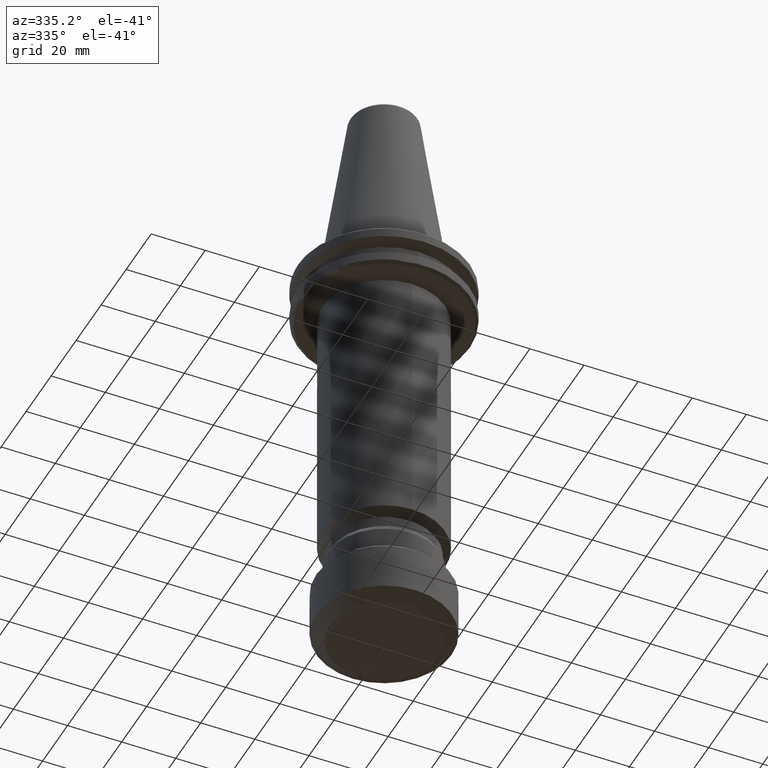
[diagram: clean part render]
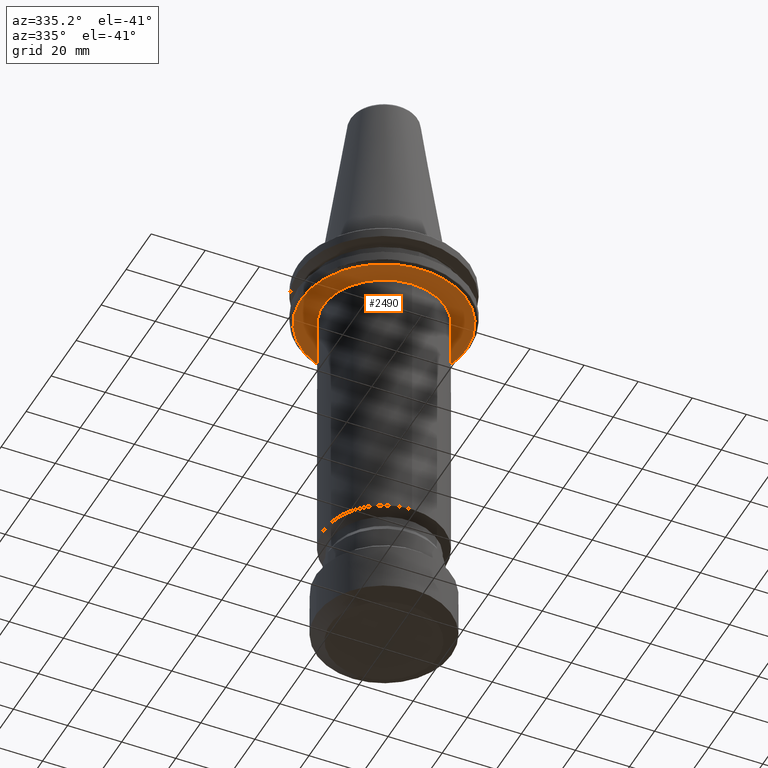
[diagram: same view with one face highlighted and labeled with its STEP entity id]
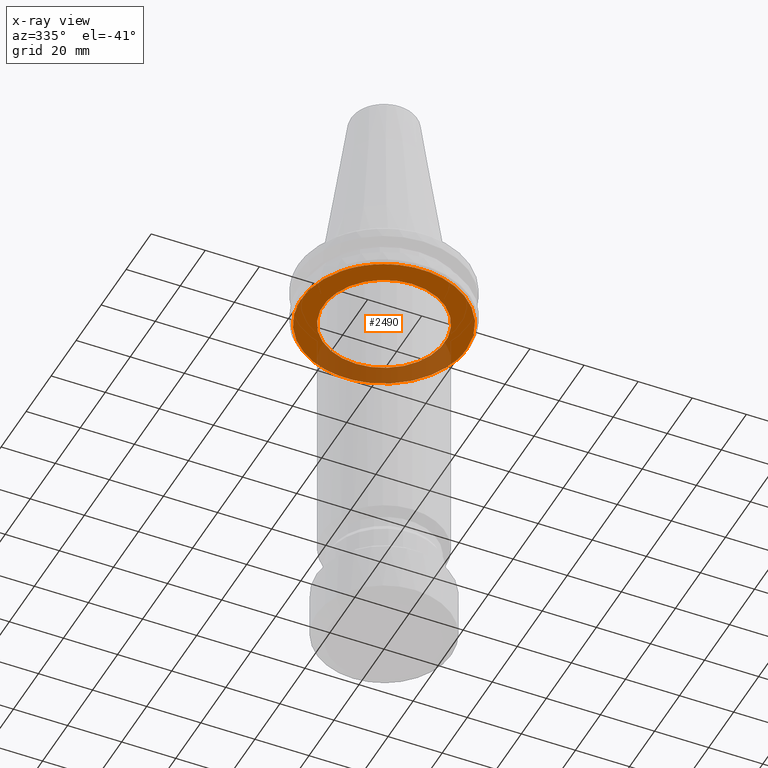
[diagram: x-ray of the same camera — body ghosted, the highlighted face saturated]
A machine part, auxiliary view. The second image highlights one B-rep face of the part: STEP entity #2490.
The next image is the same camera in x-ray: the body ghosted, the highlighted face saturated — about 31% of this face is hidden behind the body in this view.
In plain terms, the highlighted planar face has unit normal (0, 0, -1).
Its self-contained STEP definition (entity closure, byte-faithful):
#61 = CARTESIAN_POINT ( 'NONE',  ( 13.28172584842532800, 27.56232614133101700, -19.10000000000000500 ) ) ;
#64 = CIRCLE ( 'NONE', #1631, 22.50000000000000000 ) ;
#129 = CARTESIAN_POINT ( 'NONE',  ( 30.26873124096505000, -4.384212348259254100, -19.09999999999999800 ) ) ;
#139 = CARTESIAN_POINT ( 'NONE',  ( 28.35281599932573800, -11.52332575197702400, -19.09999999999999400 ) ) ;
#149 = CARTESIAN_POINT ( 'NONE',  ( 21.01432386828793100, -22.22183415146994200, -19.09999999999999800 ) ) ;
#155 = CARTESIAN_POINT ( 'NONE',  ( 21.48737639141571200, 21.78158596738516200, -19.09999999999999800 ) ) ;
#159 = CARTESIAN_POINT ( 'NONE',  ( 13.18437705999907200, -27.59798144895923900, -19.10000000000000100 ) ) ;
#171 = CARTESIAN_POINT ( 'NONE',  ( 28.57107281590015500, 10.92771550554038900, -19.09999999999999800 ) ) ;
#180 = CARTESIAN_POINT ( 'NONE',  ( 30.20915561335850100, 4.775935387584215900, -19.09999999999999800 ) ) ;
#199 = CARTESIAN_POINT ( 'NONE',  ( -27.75370311470020500, -12.85038843701005500, -19.10000000000000500 ) ) ;
#212 = CARTESIAN_POINT ( 'NONE',  ( -30.29755081166547400, -4.264357254439418400, -19.09999999999999800 ) ) ;
#222 = CARTESIAN_POINT ( 'NONE',  ( -30.48169865222845200, 2.591888391102950900, -19.10000000000000100 ) ) ;
#234 = CARTESIAN_POINT ( 'NONE',  ( -27.48304567116195000, 13.42051715856375600, -19.09999999999999800 ) ) ;
#240 = VERTEX_POINT ( 'NONE', #1393 ) ;
#245 = CARTESIAN_POINT ( 'NONE',  ( -23.09037719587471200, 20.05595545900811400, -19.10000000000000100 ) ) ;
#259 = CARTESIAN_POINT ( 'NONE',  ( 30.95132634999999900, -29.85996502400000800, -19.10000000000000100 ) ) ;
#261 = CARTESIAN_POINT ( 'NONE',  ( -15.19550766328621300, 26.54561864518078100, -19.10000000000000100 ) ) ;
#286 = CARTESIAN_POINT ( 'NONE',  ( 30.58431456788775900, 0.0000000000000000000, -19.10000000001087600 ) ) ;
#312 = B_SPLINE_CURVE_WITH_KNOTS ( 'NONE', 3,
 ( #2133, #2630, #849, #2643, #1119, #2899, #1378, #3157, #1617, #61, #1885, #323, #2142, #596, #2405, #857, #737, #947, #2731, #1212, #2981, #1465, #3244, #1713, #155, #1970, #421, #2237, #682, #2492, #961, #2743, #1226, #2990, #1475, #3255, #1720, #171, #1980, #434, #2249, #693, #2500, #974, #2758, #1236, #3001, #1488, #3265, #1733, #180, #1996, #445, #2257 ),
 .UNSPECIFIED., .F., .F.,
 ( 4, 1, 1, 1, 1, 2, 2, 1, 1, 1, 1, 2, 2, 1, 1, 1, 2, 2, 2, 2, 1, 1, 1, 2, 2, 1, 1, 1, 1, 2, 2, 1, 1, 1, 1, 2, 2, 4 ),
 ( 0.0000000000000000000, 0.06249999999999754400, 0.09374999999999642000, 0.1093749999999959200, 0.1171874999999957300, 0.1210937499999956300, 0.1249999999999955300, 0.1874999999999963900, 0.2187499999999967800, 0.2343749999999970900, 0.2421874999999972000, 0.2460937499999972000, 0.2499999999999971700, 0.3124999999999981100, 0.3437499999999985600, 0.3593749999999986700, 0.3671874999999987200, 0.3749999999999987800, 0.4374999999999998900, 0.5000000000000010000, 0.5625000000000021100, 0.5937500000000026600, 0.6093750000000028900, 0.6171875000000031100, 0.6250000000000032200, 0.6875000000000041100, 0.7187500000000046600, 0.7343750000000048800, 0.7421875000000048800, 0.7460937500000048800, 0.7500000000000047700, 0.8125000000000028900, 0.8437500000000020000, 0.8593750000000016700, 0.8671875000000014400, 0.8710937500000014400, 0.8750000000000013300, 1.000000000000000000 ),
 .UNSPECIFIED. ) ;
#322 = VERTEX_POINT ( 'NONE', #2460 ) ;
#323 = CARTESIAN_POINT ( 'NONE',  ( 15.64013759979425400, 26.28860460622494000, -19.10000000000000500 ) ) ;
#340 = VERTEX_POINT ( 'NONE', #1674 ) ;
#353 = VERTEX_POINT ( 'NONE', #3238 ) ;
#390 = CARTESIAN_POINT ( 'NONE',  ( 30.23200490017943300, -4.629091109961038300, -19.10000000000000100 ) ) ;
#401 = CARTESIAN_POINT ( 'NONE',  ( 27.42396496027800300, -13.54277267767017900, -19.09999999999999400 ) ) ;
#415 = CARTESIAN_POINT ( 'NONE',  ( 20.23534935739022300, -22.94897283225735100, -19.10000000000000500 ) ) ;
#421 = CARTESIAN_POINT ( 'NONE',  ( 23.24435557958637200, 19.89596076676553000, -19.10000000000000100 ) ) ;
#425 = CARTESIAN_POINT ( 'NONE',  ( 12.71563949976270500, -27.81573909515663000, -19.10000000000000100 ) ) ;
#434 = CARTESIAN_POINT ( 'NONE',  ( 28.94501575705652000, 9.879581787443381600, -19.09999999999999800 ) ) ;
#445 = CARTESIAN_POINT ( 'NONE',  ( 30.58431457494656400, 1.585561558465863100, -19.10000000000000500 ) ) ;
#462 = CARTESIAN_POINT ( 'NONE',  ( -27.77496745460359800, -12.80436677761333500, -19.10000000000000500 ) ) ;
#472 = CARTESIAN_POINT ( 'NONE',  ( -30.47532841034560000, -2.588423043327838300, -19.09999999999999400 ) ) ;
#473 = B_SPLINE_CURVE_WITH_KNOTS ( 'NONE', 3,
 ( #648, #1182, #1437, #3216, #1682, #129, #1940, #390, #2209, #659, #2469, #928, #2718, #1191, #2966, #1450, #3226, #1695, #139, #1953, #401, #2218, #667, #2477, #938, #2724, #1203, #2973, #1457, #3237, #1705, #149, #1960, #415, #2228, #675, #2486, #952, #2735, #1215, #2983, #1468, #3246, #1715, #159, #1973, #425, #2241, #688, #2496, #966, #2746 ),
 .UNSPECIFIED., .F., .F.,
 ( 4, 1, 1, 1, 1, 2, 2, 1, 1, 1, 1, 2, 2, 1, 1, 1, 2, 2, 2, 1, 1, 1, 2, 2, 1, 1, 1, 1, 2, 2, 1, 1, 1, 1, 2, 2, 4 ),
 ( 0.0000000000000000000, 0.06250000000000229000, 0.09375000000000344200, 0.1093750000000039700, 0.1171875000000042300, 0.1210937500000043400, 0.1250000000000044400, 0.1875000000000054400, 0.2187500000000060000, 0.2343750000000062200, 0.2421875000000064100, 0.2460937500000065500, 0.2500000000000066600, 0.3125000000000077700, 0.3437500000000082200, 0.3593750000000084900, 0.3671875000000086600, 0.3750000000000088300, 0.5000000000000102100, 0.5625000000000109900, 0.5937500000000113200, 0.6093750000000115500, 0.6171875000000118800, 0.6250000000000121000, 0.6875000000000141000, 0.7187500000000151000, 0.7343750000000155400, 0.7421875000000158800, 0.7460937500000157700, 0.7500000000000156500, 0.8125000000000108800, 0.8437500000000084400, 0.8593750000000073300, 0.8671875000000066600, 0.8710937500000063300, 0.8750000000000061100, 1.000000000000000000 ),
 .UNSPECIFIED. ) ;
#474 = ORIENTED_EDGE ( 'NONE', *, *, #3339, .T. ) ;
#484 = CARTESIAN_POINT ( 'NONE',  ( -30.21610992257177100, 4.752455162739732200, -19.09999999999999400 ) ) ;
#495 = CARTESIAN_POINT ( 'NONE',  ( -26.63542198192667200, 15.05810840569450400, -19.10000000000000500 ) ) ;
#509 = CARTESIAN_POINT ( 'NONE',  ( -22.55740055453012300, 20.66346871567960300, -19.10000000000000100 ) ) ;
#516 = CARTESIAN_POINT ( 'NONE',  ( -14.49237871431504100, 26.93291338553352100, -19.10000000000000100 ) ) ;
#537 = DIRECTION ( 'NONE',  ( -0.0000000000000000000, -0.0000000000000000000, 1.000000000000000000 ) ) ;
#596 = CARTESIAN_POINT ( 'NONE',  ( 16.55969022057854900, 25.71372602992227700, -19.09999999999999800 ) ) ;
#603 = EDGE_CURVE ( 'NONE', #3187, #240, #747, .T. ) ;
#648 = CARTESIAN_POINT ( 'NONE',  ( 30.58431456788775900, 0.0000000000000000000, -19.10000000001087600 ) ) ;
#659 = CARTESIAN_POINT ( 'NONE',  ( 30.08930055577180700, -5.542279228410290400, -19.09999999999999800 ) ) ;
#667 = CARTESIAN_POINT ( 'NONE',  ( 27.18400248754319300, -14.01575484965463600, -19.10000000000000900 ) ) ;
#675 = CARTESIAN_POINT ( 'NONE',  ( 18.08551196356361500, -24.67055671657410800, -19.10000000000000500 ) ) ;
#676 = CARTESIAN_POINT ( 'NONE',  ( -15.28022559924218600, -26.56610184050663600, -19.09999999999999400 ) ) ;
#682 = CARTESIAN_POINT ( 'NONE',  ( 24.83982521768166800, 17.86412968044215400, -19.10000000000000500 ) ) ;
#688 = CARTESIAN_POINT ( 'NONE',  ( 12.57248720032345600, -27.88073218351921100, -19.10000000000000900 ) ) ;
#690 = CARTESIAN_POINT ( 'NONE',  ( -11.76550963851126500, -28.29854431332749000, -19.10000000000000100 ) ) ;
#693 = CARTESIAN_POINT ( 'NONE',  ( 29.02936800451147500, 9.628018884013522800, -19.10000000000000100 ) ) ;
#700 = CARTESIAN_POINT ( 'NONE',  ( -9.940384830415038000, -28.99014659269100500, -19.10000000000000100 ) ) ;
#715 = CARTESIAN_POINT ( 'NONE',  ( -28.95821289966647100, -9.973655029903424600, -19.09999999999999800 ) ) ;
#732 = CARTESIAN_POINT ( 'NONE',  ( -30.50606709491026400, -2.187785188222900700, -19.09999999999999800 ) ) ;
#737 = CARTESIAN_POINT ( 'NONE',  ( 16.81838678927215400, 25.54495793860870400, -19.10000000000000500 ) ) ;
#746 = CARTESIAN_POINT ( 'NONE',  ( -30.07175467493614500, 5.578330283078129200, -19.10000000000000900 ) ) ;
#747 = B_SPLINE_CURVE_WITH_KNOTS ( 'NONE', 3,
 ( #2510, #700, #690, #676, #2037, #2023 ),
 .UNSPECIFIED., .F., .F.,
 ( 4, 2, 4 ),
 ( 0.0000000000000000000, 0.5000000000000000000, 1.000000000000000000 ),
 .UNSPECIFIED. ) ;
#756 = CARTESIAN_POINT ( 'NONE',  ( -25.71533521490157900, 16.55811839686138100, -19.10000000000000100 ) ) ;
#770 = CARTESIAN_POINT ( 'NONE',  ( -21.09329478153306400, 22.15075034125126100, -19.10000000000000100 ) ) ;
#786 = CARTESIAN_POINT ( 'NONE',  ( -14.32344988361641000, 27.02294148397471200, -19.10000000000000500 ) ) ;
#789 = EDGE_CURVE ( 'NONE', #353, #240, #2324, .T. ) ;
#829 = DIRECTION ( 'NONE',  ( -0.0000000000000000000, -0.0000000000000000000, 1.000000000000000000 ) ) ;
#837 = CARTESIAN_POINT ( 'NONE',  ( 0.0000000000000000000, -3.088578775450263300E-014, -19.09999999999997700 ) ) ;
#849 = CARTESIAN_POINT ( 'NONE',  ( 9.951708030853643200, 28.93914225637223600, -19.10000000000000100 ) ) ;
#857 = CARTESIAN_POINT ( 'NONE',  ( 16.77632096842725700, 25.57260007807001800, -19.10000000000001200 ) ) ;
#885 = EDGE_CURVE ( 'NONE', #340, #911, #1544, .T. ) ;
#886 = CARTESIAN_POINT ( 'NONE',  ( -8.049999991477466900, 29.50589428830812000, -19.10000000000870200 ) ) ;
#911 = VERTEX_POINT ( 'NONE', #886 ) ;
#928 = CARTESIAN_POINT ( 'NONE',  ( 29.48435929983727600, -8.147131251435084200, -19.10000000000000500 ) ) ;
#938 = CARTESIAN_POINT ( 'NONE',  ( 26.28585974145294900, -15.72976042009436500, -19.10000000000000500 ) ) ;
#947 = CARTESIAN_POINT ( 'NONE',  ( 17.57189856468728100, 25.04701629185284900, -19.10000000000000100 ) ) ;
#952 = CARTESIAN_POINT ( 'NONE',  ( 17.17202297081937700, -25.30892648097975300, -19.10000000000000100 ) ) ;
#961 = CARTESIAN_POINT ( 'NONE',  ( 26.35849219115941400, 15.52291102919082300, -19.09999999999999800 ) ) ;
#966 = CARTESIAN_POINT ( 'NONE',  ( 9.584449222732649400, -29.08725535567036100, -19.10000000000000900 ) ) ;
#974 = CARTESIAN_POINT ( 'NONE',  ( 29.31964662504926300, 8.743071018795602000, -19.10000000000000500 ) ) ;
#977 = CARTESIAN_POINT ( 'NONE',  ( -25.03029076047268500, -17.61057559932243400, -19.10000000000000500 ) ) ;
#990 = VERTEX_POINT ( 'NONE', #1571 ) ;
#1003 = CARTESIAN_POINT ( 'NONE',  ( -29.80047289529272100, -6.892378476941295200, -19.10000000000000100 ) ) ;
#1012 = CARTESIAN_POINT ( 'NONE',  ( -30.56077263867153300, -1.369494844928200700, -19.10000000000000500 ) ) ;
#1024 = CARTESIAN_POINT ( 'NONE',  ( -29.74679891267917500, 7.236293954383096900, -19.10000000000000100 ) ) ;
#1035 = CARTESIAN_POINT ( 'NONE',  ( -25.48517869184667700, 16.90895530366709200, -19.10000000000000500 ) ) ;
#1050 = CARTESIAN_POINT ( 'NONE',  ( -20.47223316904979700, 22.72221487088764000, -19.10000000000000100 ) ) ;
#1056 = PLANE ( 'NONE',  #3132 ) ;
#1058 = CARTESIAN_POINT ( 'NONE',  ( -14.27118040179393400, 27.05058180611721500, -19.10000000000000100 ) ) ;
#1083 = VERTEX_POINT ( 'NONE', #286 ) ;
#1111 = DIRECTION ( 'NONE',  ( 0.0000000000000000000, -1.000000000000000000, -3.083952846180990300E-016 ) ) ;
#1119 = CARTESIAN_POINT ( 'NONE',  ( 11.89009214850002400, 28.17970787793501600, -19.10000000000000100 ) ) ;
#1133 = ORIENTED_EDGE ( 'NONE', *, *, #885, .F. ) ;
#1182 = CARTESIAN_POINT ( 'NONE',  ( 30.58431457497415800, -0.7924296526385332700, -19.10000000000000500 ) ) ;
#1191 = CARTESIAN_POINT ( 'NONE',  ( 29.17334355088105000, -9.183407987102654600, -19.10000000000000100 ) ) ;
#1203 = CARTESIAN_POINT ( 'NONE',  ( 23.79475743018709000, -19.23419767699148500, -19.10000000000000500 ) ) ;
#1212 = CARTESIAN_POINT ( 'NONE',  ( 19.74907789869899900, 23.36013732250267000, -19.10000000000000100 ) ) ;
#1215 = CARTESIAN_POINT ( 'NONE',  ( 16.95134383702850300, -25.45692252292129300, -19.10000000000000100 ) ) ;
#1226 = CARTESIAN_POINT ( 'NONE',  ( 26.88330048802384600, 14.58425060653572900, -19.10000000000000100 ) ) ;
#1236 = CARTESIAN_POINT ( 'NONE',  ( 29.96507469490112300, 6.147962576426842000, -19.09999999999999800 ) ) ;
#1254 = CARTESIAN_POINT ( 'NONE',  ( -26.91985190401435400, -14.53563836293257900, -19.10000000000000900 ) ) ;
#1264 = CARTESIAN_POINT ( 'NONE',  ( -29.96833238626305000, -6.108185453013369700, -19.10000000000000100 ) ) ;
#1278 = CARTESIAN_POINT ( 'NONE',  ( -30.57776448348089100, 0.7697684608519401700, -19.10000000000000100 ) ) ;
#1287 = CARTESIAN_POINT ( 'NONE',  ( -28.74558784458166700, 10.46667302201735300, -19.10000000000000100 ) ) ;
#1298 = CARTESIAN_POINT ( 'NONE',  ( -25.02417725613110400, 17.59623268591528200, -19.10000000000000900 ) ) ;
#1309 = CARTESIAN_POINT ( 'NONE',  ( -20.32226844256025800, 22.85622847975342600, -19.10000000000000100 ) ) ;
#1319 = CARTESIAN_POINT ( 'NONE',  ( 0.0000000000000000000, -3.088578775450263300E-014, -19.09999999999997700 ) ) ;
#1321 = CARTESIAN_POINT ( 'NONE',  ( -10.20841370485550400, 28.91702110403413400, -19.10000000000000100 ) ) ;
#1368 = CARTESIAN_POINT ( 'NONE',  ( -8.049999987735017000, -29.50589428885316000, -19.10000000001087300 ) ) ;
#1378 = CARTESIAN_POINT ( 'NONE',  ( 12.34558851288294400, 27.98194154810809000, -19.10000000000000500 ) ) ;
#1393 = CARTESIAN_POINT ( 'NONE',  ( -18.49999999100443300, -24.35467712651432800, -19.10000000000870200 ) ) ;
#1416 = FACE_OUTER_BOUND ( 'NONE', #2590, .T. ) ;
#1429 = DIRECTION ( 'NONE',  ( 1.000000000000000000, 0.0000000000000000000, 0.0000000000000000000 ) ) ;
#1437 = CARTESIAN_POINT ( 'NONE',  ( 30.53837674819127200, -1.977627506765265100, -19.10000000000000500 ) ) ;
#1450 = CARTESIAN_POINT ( 'NONE',  ( 29.09460495796820500, -9.429038674149355300, -19.10000000000000100 ) ) ;
#1457 = CARTESIAN_POINT ( 'NONE',  ( 21.93730452143860200, -21.31867512391136200, -19.10000000000000500 ) ) ;
#1465 = CARTESIAN_POINT ( 'NONE',  ( 20.54421665512118600, 22.65716314296237900, -19.10000000000000500 ) ) ;
#1468 = CARTESIAN_POINT ( 'NONE',  ( 16.17270164165248800, -25.97171344325617100, -19.10000000000000500 ) ) ;
#1475 = CARTESIAN_POINT ( 'NONE',  ( 27.03660322954638000, 14.29802118054902300, -19.10000000000000500 ) ) ;
#1488 = CARTESIAN_POINT ( 'NONE',  ( 30.15918476866935900, 5.083551251622535200, -19.10000000000000500 ) ) ;
#1501 = CARTESIAN_POINT ( 'NONE',  ( -27.57573593985226500, -13.22930260066418700, -19.10000000000000500 ) ) ;
#1504 = ORIENTED_EDGE ( 'NONE', *, *, #2487, .F. ) ;
#1509 = ORIENTED_EDGE ( 'NONE', *, *, #2741, .F. ) ;
#1514 = CARTESIAN_POINT ( 'NONE',  ( -30.00579083047243500, -5.920658012760005900, -19.10000000000000900 ) ) ;
#1525 = CARTESIAN_POINT ( 'NONE',  ( -30.54291003366547500, 1.592972690721149000, -19.10000000000000100 ) ) ;
#1535 = CARTESIAN_POINT ( 'NONE',  ( -27.91660065118989600, 12.50064800885443900, -19.10000000000000500 ) ) ;
#1544 = CIRCLE ( 'NONE', #3148, 30.58431456788775900 ) ;
#1546 = CARTESIAN_POINT ( 'NONE',  ( -23.72931310873774500, 19.30057356666244000, -19.10000000000000500 ) ) ;
#1559 = CARTESIAN_POINT ( 'NONE',  ( -19.34440521486110100, 23.72124965769463100, -19.10000000000000500 ) ) ;
#1568 = DIRECTION ( 'NONE',  ( 0.0000000000000000000, -1.000000000000000000, -3.083952846180990300E-016 ) ) ;
#1571 = CARTESIAN_POINT ( 'NONE',  ( 2.755455298081544800E-015, 22.49999999999996800, -19.09999999999996900 ) ) ;
#1617 = CARTESIAN_POINT ( 'NONE',  ( 12.48000439302518800, 27.92225560068204600, -19.10000000000000500 ) ) ;
#1631 = AXIS2_PLACEMENT_3D ( 'NONE', #837, #2631, #1111 ) ;
#1674 = CARTESIAN_POINT ( 'NONE',  ( 8.049999993348146500, 29.50589428749247000, -19.10000000000870200 ) ) ;
#1682 = CARTESIAN_POINT ( 'NONE',  ( 30.31730092928563300, -4.041168462941907800, -19.10000000000000100 ) ) ;
#1695 = CARTESIAN_POINT ( 'NONE',  ( 28.79819197143491000, -10.33376494138646600, -19.10000000000000500 ) ) ;
#1705 = CARTESIAN_POINT ( 'NONE',  ( 21.17033729911509000, -22.07326540021850300, -19.09999999999999800 ) ) ;
#1706 = CARTESIAN_POINT ( 'NONE',  ( 0.0000000000000000000, 0.0000000000000000000, -19.10000000001087300 ) ) ;
#1713 = CARTESIAN_POINT ( 'NONE',  ( 20.77825099093967200, 22.44272616460991500, -19.10000000000000900 ) ) ;
#1715 = CARTESIAN_POINT ( 'NONE',  ( 13.83446239030281600, -27.28208780696180500, -19.10000000000000100 ) ) ;
#1720 = CARTESIAN_POINT ( 'NONE',  ( 28.02288060141470900, 12.30396106330621100, -19.10000000000000500 ) ) ;
#1733 = CARTESIAN_POINT ( 'NONE',  ( 30.20072610129513500, 4.828968649850431800, -19.10000000000000100 ) ) ;
#1746 = EDGE_LOOP ( 'NONE', ( #1781, #1504 ) ) ;
#1753 = CARTESIAN_POINT ( 'NONE',  ( -27.73169101588782600, -12.89789344296646500, -19.10000000000000500 ) ) ;
#1754 = ORIENTED_EDGE ( 'NONE', *, *, #603, .T. ) ;
#1760 = CARTESIAN_POINT ( 'NONE',  ( 8.049999993376234300, -29.50589428731408900, -19.10000000001087300 ) ) ;
#1762 = CARTESIAN_POINT ( 'NONE',  ( -30.14334185727541600, -5.214742292093321300, -19.09999999999999800 ) ) ;
#1772 = CARTESIAN_POINT ( 'NONE',  ( -30.52911194958909400, 1.838607329393850300, -19.10000000000000100 ) ) ;
#1781 = ORIENTED_EDGE ( 'NONE', *, *, #2940, .F. ) ;
#1785 = CARTESIAN_POINT ( 'NONE',  ( -27.55764734716925400, 13.26667937274265600, -19.10000000000000100 ) ) ;
#1800 = CARTESIAN_POINT ( 'NONE',  ( -23.19823930385466700, 19.93109661823400500, -19.09999999999999800 ) ) ;
#1811 = CARTESIAN_POINT ( 'NONE',  ( -16.11704694030679300, 26.00623251681858200, -19.10000000000000100 ) ) ;
#1822 = DIRECTION ( 'NONE',  ( -1.000000000000000000, 0.0000000000000000000, -0.0000000000000000000 ) ) ;
#1885 = CARTESIAN_POINT ( 'NONE',  ( 14.38959019235639800, 27.01008128441666800, -19.10000000000000100 ) ) ;
#1905 = DIRECTION ( 'NONE',  ( -0.0000000000000000000, -0.0000000000000000000, 1.000000000000000000 ) ) ;
#1940 = CARTESIAN_POINT ( 'NONE',  ( 30.24683899223045100, -4.531150375982921500, -19.10000000000000500 ) ) ;
#1953 = CARTESIAN_POINT ( 'NONE',  ( 27.74781464832788900, -12.87555555890011400, -19.09999999999999800 ) ) ;
#1960 = CARTESIAN_POINT ( 'NONE',  ( 20.93475437021586000, -22.29680280652394200, -19.10000000000000500 ) ) ;
#1970 = CARTESIAN_POINT ( 'NONE',  ( 22.09090570477465600, 21.16938885713688700, -19.10000000000000900 ) ) ;
#1973 = CARTESIAN_POINT ( 'NONE',  ( 12.85666167570494900, -27.75113134068790900, -19.09999999999999800 ) ) ;
#1980 = CARTESIAN_POINT ( 'NONE',  ( 28.82391108330990200, 10.23047869821598300, -19.10000000000000500 ) ) ;
#1996 = CARTESIAN_POINT ( 'NONE',  ( 30.46181369153754300, 3.161229864192006500, -19.10000000000000500 ) ) ;
#2010 = CARTESIAN_POINT ( 'NONE',  ( -27.76835239983568500, -12.81870311488949600, -19.10000000000000900 ) ) ;
#2022 = CARTESIAN_POINT ( 'NONE',  ( -30.42483950330958100, -3.148283056100000800, -19.09999999999999400 ) ) ;
#2023 = CARTESIAN_POINT ( 'NONE',  ( -18.49999999100443300, -24.35467712651432800, -19.10000000000870200 ) ) ;
#2033 = CARTESIAN_POINT ( 'NONE',  ( -30.38564254410125500, 3.592285646156071300, -19.10000000000000100 ) ) ;
#2037 = CARTESIAN_POINT ( 'NONE',  ( -16.93926972253388600, -25.54021985703775500, -19.10000000000000500 ) ) ;
#2046 = CARTESIAN_POINT ( 'NONE',  ( -27.11083922198143300, 14.17231661489952700, -19.10000000000000100 ) ) ;
#2053 = CARTESIAN_POINT ( 'NONE',  ( -23.03475766325307100, 20.11980435711794600, -19.10000000000000100 ) ) ;
#2065 = CARTESIAN_POINT ( 'NONE',  ( -14.72789545837263100, 26.80545750597964600, -19.10000000000000100 ) ) ;
#2085 = CARTESIAN_POINT ( 'NONE',  ( 0.0000000000000000000, 0.0000000000000000000, -19.10000000001087300 ) ) ;
#2123 = AXIS2_PLACEMENT_3D ( 'NONE', #1706, #1905, #1429 ) ;
#2133 = CARTESIAN_POINT ( 'NONE',  ( 8.049999993348146500, 29.50589428749247000, -19.10000000000870200 ) ) ;
#2142 = CARTESIAN_POINT ( 'NONE',  ( 16.25492105505942000, 25.90856851418115900, -19.10000000000000500 ) ) ;
#2168 = CARTESIAN_POINT ( 'NONE',  ( 0.0000000000000000000, 0.0000000000000000000, -19.10000000001087300 ) ) ;
#2209 = CARTESIAN_POINT ( 'NONE',  ( 30.22478137897489200, -4.676050272730934800, -19.09999999999999800 ) ) ;
#2218 = CARTESIAN_POINT ( 'NONE',  ( 27.28059744842428800, -13.82681620328061100, -19.10000000000000500 ) ) ;
#2224 = ORIENTED_EDGE ( 'NONE', *, *, #2602, .T. ) ;
#2228 = CARTESIAN_POINT ( 'NONE',  ( 19.26978788749582000, -23.77705298826452600, -19.10000000000000500 ) ) ;
#2237 = CARTESIAN_POINT ( 'NONE',  ( 23.79495943539602400, 19.23383406272190800, -19.10000000000000900 ) ) ;
#2241 = CARTESIAN_POINT ( 'NONE',  ( 12.62149744346109700, -27.85858250626576500, -19.10000000000000500 ) ) ;
#2249 = CARTESIAN_POINT ( 'NONE',  ( 28.99577894724259200, 9.728709145588624100, -19.10000000000000900 ) ) ;
#2257 = CARTESIAN_POINT ( 'NONE',  ( 30.58431456788775900, 0.0000000000000000000, -19.10000000001087600 ) ) ;
#2276 = CARTESIAN_POINT ( 'NONE',  ( -28.29471130639970200, -11.67518924313939100, -19.09999999999999400 ) ) ;
#2278 = ORIENTED_EDGE ( 'NONE', *, *, #789, .F. ) ;
#2287 = CARTESIAN_POINT ( 'NONE',  ( -30.49414749076400000, -2.348092413510658900, -19.10000000000000500 ) ) ;
#2296 = CARTESIAN_POINT ( 'NONE',  ( -30.13113869290603800, 5.248179109637389300, -19.10000000000000500 ) ) ;
#2308 = CARTESIAN_POINT ( 'NONE',  ( -26.03042190837939200, 16.06288893720806100, -19.09999999999999800 ) ) ;
#2319 = CARTESIAN_POINT ( 'NONE',  ( -21.89920335622784400, 21.36708534433035600, -19.10000000000000100 ) ) ;
#2324 = CIRCLE ( 'NONE', #2123, 30.58431456788775900 ) ;
#2333 = CARTESIAN_POINT ( 'NONE',  ( -14.37419268188601000, 26.99602543759905200, -19.10000000000000100 ) ) ;
#2351 = DIRECTION ( 'NONE',  ( 1.000000000000000000, 0.0000000000000000000, 0.0000000000000000000 ) ) ;
#2394 = AXIS2_PLACEMENT_3D ( 'NONE', #2085, #537, #2351 ) ;
#2395 = VERTEX_POINT ( 'NONE', #1760 ) ;
#2405 = CARTESIAN_POINT ( 'NONE',  ( 16.68974359963387900, 25.62918829990340800, -19.10000000000000900 ) ) ;
#2460 = CARTESIAN_POINT ( 'NONE',  ( 0.0000000000000000000, -22.50000000000003200, -19.09999999999998400 ) ) ;
#2469 = CARTESIAN_POINT ( 'NONE',  ( 29.84938772585315500, -6.753755081175565800, -19.10000000000000500 ) ) ;
#2477 = CARTESIAN_POINT ( 'NONE',  ( 27.13588402567798900, -14.10870153497207000, -19.10000000000000500 ) ) ;
#2486 = CARTESIAN_POINT ( 'NONE',  ( 17.47892711600031700, -25.09916113397087000, -19.10000000000000100 ) ) ;
#2487 = EDGE_CURVE ( 'NONE', #990, #322, #2691, .T. ) ;
#2490 = ADVANCED_FACE ( 'NONE', ( #1416, #3286 ), #1056, .T. ) ;
#2492 = CARTESIAN_POINT ( 'NONE',  ( 25.57771116986744900, 16.80737504563529000, -19.09999999999999800 ) ) ;
#2496 = CARTESIAN_POINT ( 'NONE',  ( 11.07683738507764600, -28.55231835319249700, -19.10000000000001200 ) ) ;
#2500 = CARTESIAN_POINT ( 'NONE',  ( 29.04651063452566400, 9.576171800251483300, -19.09999999999999800 ) ) ;
#2509 = B_SPLINE_CURVE_WITH_KNOTS ( 'NONE', 3,
 ( #3129, #977, #2775, #1254, #3021, #1501, #3282, #1753, #199, #2010, #462, #2276, #715, #2531, #1003, #2786, #1264, #3034, #1514, #3294, #1762, #212, #2022, #472, #2287, #732, #2540, #1012, #2800, #1278, #3043, #1525, #3306, #1772, #222, #2033, #484, #2296, #746, #2548, #1024, #2810, #1287, #3054, #1535, #3321, #1785, #234, #2046, #495, #2308, #756, #2564, #1035, #2818, #1298, #3066, #1546, #3329, #1800, #245, #2053, #509, #2319, #770, #2572, #1050, #2828, #1309, #3078, #1559, #3341, #1811, #261, #2065, #516, #2333, #786, #2581, #1058, #2840, #1321, #3092 ),
 .UNSPECIFIED., .F., .F.,
 ( 4, 1, 1, 1, 1, 1, 1, 2, 2, 1, 1, 1, 1, 1, 2, 2, 1, 1, 1, 2, 2, 1, 1, 1, 2, 2, 1, 1, 2, 2, 2, 1, 1, 2, 2, 1, 1, 1, 2, 2, 1, 1, 1, 2, 2, 1, 1, 1, 1, 2, 2, 1, 1, 1, 1, 1, 1, 2, 2, 4 ),
 ( 0.0000000000000000000, 0.06250000000000227600, 0.09375000000000341400, 0.1093750000000040200, 0.1171875000000043400, 0.1210937500000044500, 0.1230468750000045500, 0.1240234375000045500, 0.1250000000000045500, 0.1875000000000033600, 0.2187500000000027500, 0.2343750000000024100, 0.2421875000000022500, 0.2460937500000021600, 0.2480468750000020800, 0.2500000000000020000, 0.2812500000000011100, 0.2968750000000007200, 0.3046875000000005000, 0.3085937500000003300, 0.3125000000000002200, 0.3437499999999993900, 0.3593749999999990600, 0.3671874999999988300, 0.3710937499999987200, 0.3749999999999986700, 0.4062499999999978900, 0.4218749999999976100, 0.4296874999999974500, 0.4374999999999972800, 0.4999999999999958400, 0.5312499999999951200, 0.5468749999999947800, 0.5546874999999946700, 0.5624999999999944500, 0.5937499999999937800, 0.6093749999999934500, 0.6171874999999932300, 0.6210937499999932300, 0.6249999999999931200, 0.6562499999999917800, 0.6718749999999911200, 0.6796874999999909000, 0.6835937499999909000, 0.6874999999999909000, 0.7187499999999905600, 0.7343749999999903400, 0.7421874999999902300, 0.7460937499999902300, 0.7480468749999901200, 0.7499999999999901200, 0.8124999999999910100, 0.8437499999999916700, 0.8593749999999920100, 0.8671874999999921200, 0.8710937499999923400, 0.8730468749999923400, 0.8740234374999924500, 0.8749999999999924500, 1.000000000000000000 ),
 .UNSPECIFIED. ) ;
#2510 = CARTESIAN_POINT ( 'NONE',  ( -8.049999987735017000, -29.50589428885316000, -19.10000000001087300 ) ) ;
#2531 = CARTESIAN_POINT ( 'NONE',  ( -29.55008792461641000, -7.929336535528592300, -19.09999999999999800 ) ) ;
#2540 = CARTESIAN_POINT ( 'NONE',  ( -30.51158132313075900, -2.109579368557247000, -19.10000000000000100 ) ) ;
#2548 = CARTESIAN_POINT ( 'NONE',  ( -30.04094922805185800, 5.741945559207223900, -19.10000000000000100 ) ) ;
#2564 = CARTESIAN_POINT ( 'NONE',  ( -25.57760091983162100, 16.76882513540490600, -19.10000000000000100 ) ) ;
#2572 = CARTESIAN_POINT ( 'NONE',  ( -20.68083753335015400, 22.53327757225212800, -19.10000000000000900 ) ) ;
#2575 = ORIENTED_EDGE ( 'NONE', *, *, #2791, .T. ) ;
#2581 = CARTESIAN_POINT ( 'NONE',  ( -14.28960098665570700, 27.04085618690555000, -19.10000000000000900 ) ) ;
#2590 = EDGE_LOOP ( 'NONE', ( #1509, #1754, #2278, #2575, #1133, #2224, #474 ) ) ;
#2602 = EDGE_CURVE ( 'NONE', #340, #1083, #312, .T. ) ;
#2621 = AXIS2_PLACEMENT_3D ( 'NONE', #1319, #3090, #1568 ) ;
#2630 = CARTESIAN_POINT ( 'NONE',  ( 8.816892836391577500, 29.29666534159977300, -19.10000000000000100 ) ) ;
#2631 = DIRECTION ( 'NONE',  ( -0.0000000000000000000, 3.083952846180990300E-016, -1.000000000000000000 ) ) ;
#2643 = CARTESIAN_POINT ( 'NONE',  ( 11.24849196382381700, 28.44559257353685700, -19.10000000000000100 ) ) ;
#2691 = CIRCLE ( 'NONE', #2621, 22.50000000000000000 ) ;
#2718 = CARTESIAN_POINT ( 'NONE',  ( 29.28056255571829400, -8.838816255406518600, -19.10000000000000500 ) ) ;
#2724 = CARTESIAN_POINT ( 'NONE',  ( 25.36266211931287300, -17.17855026081366900, -19.10000000000000500 ) ) ;
#2731 = CARTESIAN_POINT ( 'NONE',  ( 18.60308069102972100, 24.30222793176224300, -19.09999999999999800 ) ) ;
#2735 = CARTESIAN_POINT ( 'NONE',  ( 17.03971868258483400, -25.39785373076438200, -19.10000000000000100 ) ) ;
#2741 = EDGE_CURVE ( 'NONE', #3187, #2395, #2964, .T. ) ;
#2743 = CARTESIAN_POINT ( 'NONE',  ( 26.72886122107420800, 14.86778311867613300, -19.10000000000000100 ) ) ;
#2746 = CARTESIAN_POINT ( 'NONE',  ( 8.049999993376234300, -29.50589428731408900, -19.10000000001087300 ) ) ;
#2758 = CARTESIAN_POINT ( 'NONE',  ( 29.65672780837049100, 7.554979759600364300, -19.09999999999999800 ) ) ;
#2775 = CARTESIAN_POINT ( 'NONE',  ( -25.96553679067704200, -16.22938166207901000, -19.09999999999999800 ) ) ;
#2786 = CARTESIAN_POINT ( 'NONE',  ( -29.91427724518121400, -6.370199744797675500, -19.10000000000000100 ) ) ;
#2791 = EDGE_CURVE ( 'NONE', #353, #911, #2509, .T. ) ;
#2800 = CARTESIAN_POINT ( 'NONE',  ( -30.59441644660459800, -0.3823985400138394400, -19.10000000000000100 ) ) ;
#2810 = CARTESIAN_POINT ( 'NONE',  ( -29.39797282351369400, 8.543399927376230000, -19.10000000000000100 ) ) ;
#2818 = CARTESIAN_POINT ( 'NONE',  ( -25.43781743705719500, 16.98011664826200500, -19.09999999999999800 ) ) ;
#2828 = CARTESIAN_POINT ( 'NONE',  ( -20.38232221144776800, 22.80268950240325400, -19.10000000000000100 ) ) ;
#2840 = CARTESIAN_POINT ( 'NONE',  ( -12.27698755591447200, 28.10129864055056000, -19.10000000000000900 ) ) ;
#2899 = CARTESIAN_POINT ( 'NONE',  ( 12.20919429538589700, 28.04198806658806500, -19.10000000000000500 ) ) ;
#2940 = EDGE_CURVE ( 'NONE', #322, #990, #64, .T. ) ;
#2964 = CIRCLE ( 'NONE', #2394, 30.58431456788775900 ) ;
#2966 = CARTESIAN_POINT ( 'NONE',  ( 29.12625241321270400, -9.330822135624659500, -19.10000000000000100 ) ) ;
#2973 = CARTESIAN_POINT ( 'NONE',  ( 22.97023755485086100, -20.22564506492564000, -19.10000000000000100 ) ) ;
#2981 = CARTESIAN_POINT ( 'NONE',  ( 20.30781435093441400, 22.87079930391772800, -19.10000000000000100 ) ) ;
#2983 = CARTESIAN_POINT ( 'NONE',  ( 16.90583659697972200, -25.48716436667101300, -19.10000000000000500 ) ) ;
#2990 = CARTESIAN_POINT ( 'NONE',  ( 26.98530659547928700, 14.39461484119011000, -19.10000000000000100 ) ) ;
#3001 = CARTESIAN_POINT ( 'NONE',  ( 30.09801951466371900, 5.439226306312000300, -19.09999999999999800 ) ) ;
#3021 = CARTESIAN_POINT ( 'NONE',  ( -27.36280814687437900, -13.66817912026874300, -19.10000000000000100 ) ) ;
#3034 = CARTESIAN_POINT ( 'NONE',  ( -29.99088879661332600, -5.995695415310282600, -19.10000000000000500 ) ) ;
#3043 = CARTESIAN_POINT ( 'NONE',  ( -30.55546273382430300, 1.345990622567934100, -19.09999999999999400 ) ) ;
#3054 = CARTESIAN_POINT ( 'NONE',  ( -28.38818595948617900, 11.41565317809770800, -19.09999999999999800 ) ) ;
#3066 = CARTESIAN_POINT ( 'NONE',  ( -24.44714970645767200, 18.39843140130374600, -19.10000000000000100 ) ) ;
#3078 = CARTESIAN_POINT ( 'NONE',  ( -20.29072122053987200, 22.88423728017321300, -19.10000000000000100 ) ) ;
#3090 = DIRECTION ( 'NONE',  ( -0.0000000000000000000, 3.083952846180990300E-016, -1.000000000000000000 ) ) ;
#3092 = CARTESIAN_POINT ( 'NONE',  ( -8.049999991477466900, 29.50589428830812000, -19.10000000000870200 ) ) ;
#3129 = CARTESIAN_POINT ( 'NONE',  ( -24.35467711929478800, -18.49999998964877400, -19.10000000000870200 ) ) ;
#3132 = AXIS2_PLACEMENT_3D ( 'NONE', #259, #3349, #1822 ) ;
#3148 = AXIS2_PLACEMENT_3D ( 'NONE', #2168, #829, #3220 ) ;
#3157 = CARTESIAN_POINT ( 'NONE',  ( 12.43643713666896600, 27.94168303752399400, -19.10000000000001200 ) ) ;
#3187 = VERTEX_POINT ( 'NONE', #1368 ) ;
#3216 = CARTESIAN_POINT ( 'NONE',  ( 30.40439140435280400, -3.354326743125421100, -19.10000000000000100 ) ) ;
#3220 = DIRECTION ( 'NONE',  ( 1.000000000000000000, 0.0000000000000000000, 0.0000000000000000000 ) ) ;
#3226 = CARTESIAN_POINT ( 'NONE',  ( 29.07910155040594400, -9.476753430098609600, -19.10000000000000500 ) ) ;
#3237 = CARTESIAN_POINT ( 'NONE',  ( 21.40308971001913800, -21.84927551333651900, -19.10000000000000100 ) ) ;
#3238 = CARTESIAN_POINT ( 'NONE',  ( -24.35467711929478800, -18.49999998964877400, -19.10000000000870200 ) ) ;
#3244 = CARTESIAN_POINT ( 'NONE',  ( 20.70113904116954400, 22.51386795404189900, -19.10000000000000500 ) ) ;
#3246 = CARTESIAN_POINT ( 'NONE',  ( 15.11325129777231700, -26.61192508880669600, -19.10000000000000100 ) ) ;
#3255 = CARTESIAN_POINT ( 'NONE',  ( 27.48011753814267500, 13.45235201530602600, -19.09999999999999800 ) ) ;
#3265 = CARTESIAN_POINT ( 'NONE',  ( 30.18426120126984100, 4.930839031120184400, -19.10000000000000100 ) ) ;
#3282 = CARTESIAN_POINT ( 'NONE',  ( -27.68006225422813300, -13.00857761629373500, -19.10000000000000500 ) ) ;
#3286 = FACE_BOUND ( 'NONE', #1746, .T. ) ;
#3294 = CARTESIAN_POINT ( 'NONE',  ( -30.01281123273834700, -5.884980309837035700, -19.10000000000000100 ) ) ;
#3306 = CARTESIAN_POINT ( 'NONE',  ( -30.53387605412651600, 1.757634005741542000, -19.10000000000000500 ) ) ;
#3321 = CARTESIAN_POINT ( 'NONE',  ( -27.70278913855898400, 12.96089964674937500, -19.10000000000000500 ) ) ;
#3329 = CARTESIAN_POINT ( 'NONE',  ( -23.35923536243587500, 19.74320556535983000, -19.10000000000000100 ) ) ;
#3339 = EDGE_CURVE ( 'NONE', #1083, #2395, #473, .T. ) ;
#3341 = CARTESIAN_POINT ( 'NONE',  ( -17.90538496312176500, 24.84862663303614400, -19.10000000000000100 ) ) ;
#3349 = DIRECTION ( 'NONE',  ( 0.0000000000000000000, 0.0000000000000000000, -1.000000000000000000 ) ) ;